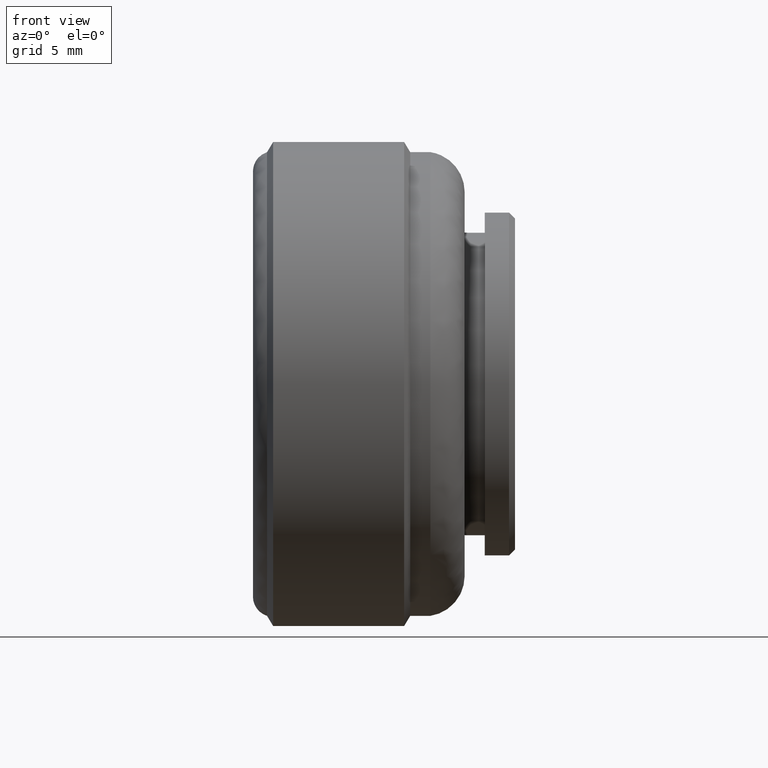
[diagram: clean part render]
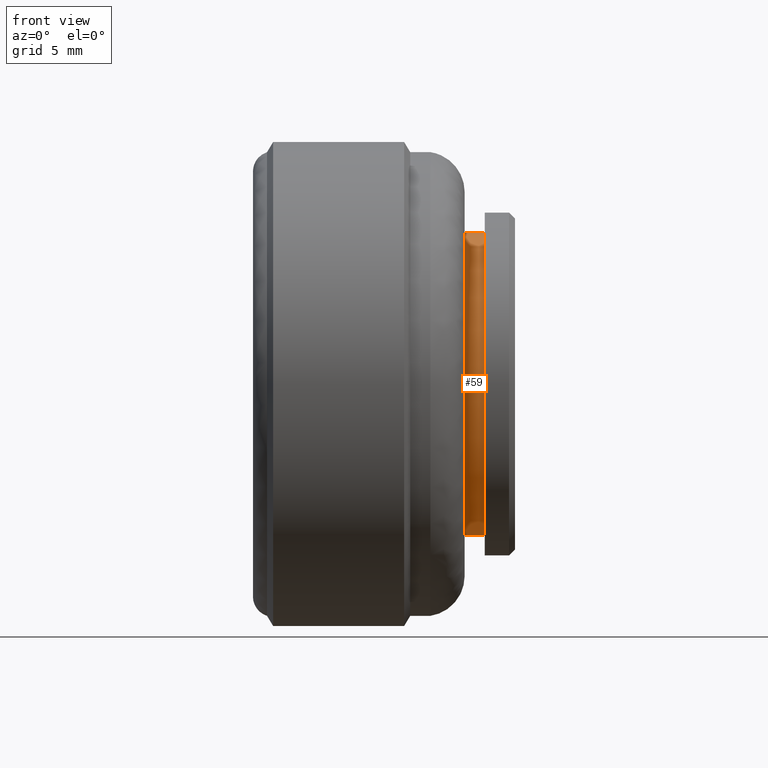
[diagram: same view with one face highlighted and labeled with its STEP entity id]
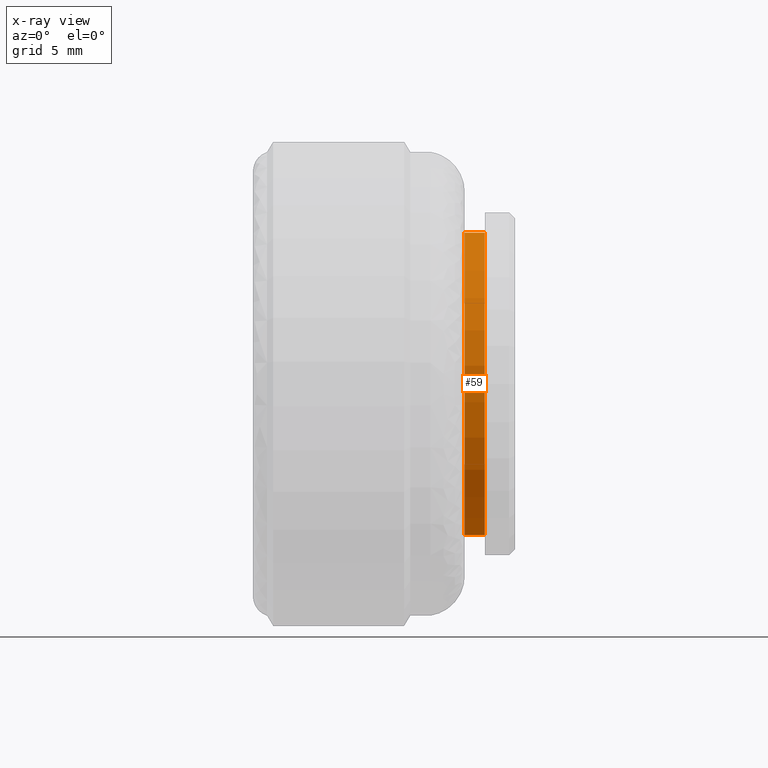
[diagram: x-ray of the same camera — body ghosted, the highlighted face saturated]
A machine part, front view. The second image highlights one B-rep face of the part: STEP entity #59.
The next image is the same camera in x-ray: the body ghosted, the highlighted face saturated — about 0% of this face is hidden behind the body in this view.
In plain terms, the highlighted cylindrical surface (partial cylindrical patch) has radius 7.5 mm, axis along (1, -0, -0).
Its self-contained STEP definition (entity closure, byte-faithful):
#59=ADVANCED_FACE('',(#266),#265,.T.);
#265=CYLINDRICAL_SURFACE('',#616,7.50000000000E+00);
#266=FACE_OUTER_BOUND('',#617,.T.);
#613=CARTESIAN_POINT('',(0.00000000000E+00,0.00000000000E+00,0.00000000000E+00));
#614=DIRECTION('',(1.00000000000E+00,-0.00000000000E+00,-0.00000000000E+00));
#615=DIRECTION('',(-0.00000000000E+00,-0.00000000000E+00,-1.00000000000E+00));
#616=AXIS2_PLACEMENT_3D('',#613,#614,#615);
#617=EDGE_LOOP('',(#786,#787,#788,#789));
#786=ORIENTED_EDGE('',*,*,#843,.F.);
#787=ORIENTED_EDGE('',*,*,#878,.T.);
#788=ORIENTED_EDGE('',*,*,#846,.T.);
#789=ORIENTED_EDGE('',*,*,#879,.F.);
#843=EDGE_CURVE('',#929,#928,#936,.T.);
#846=EDGE_CURVE('',#956,#957,#958,.T.);
#878=EDGE_CURVE('',#929,#956,#1167,.T.);
#879=EDGE_CURVE('',#928,#957,#1173,.T.);
#928=VERTEX_POINT('',#1327);
#929=VERTEX_POINT('',#1328);
#936=CIRCLE('',#1336,7.50000000000E+00);
#956=VERTEX_POINT('',#1347);
#957=VERTEX_POINT('',#1348);
#958=CIRCLE('',#1352,7.50000000000E+00);
#1167=(BOUNDED_CURVE() B_SPLINE_CURVE(1,(#1473,#1474),.UNSPECIFIED.,.F.,.F.) B_SPLINE_CURVE_WITH_KNOTS((2,2),(8.33332935974E-02,9.16666633252E-01),.UNSPECIFIED.) CURVE() GEOMETRIC_REPRESENTATION_ITEM() RATIONAL_B_SPLINE_CURVE((1.00000000000E+00,1.00000000000E+00)) REPRESENTATION_ITEM('') );
#1173=(BOUNDED_CURVE() B_SPLINE_CURVE(1,(#1475,#1476),.UNSPECIFIED.,.F.,.F.) B_SPLINE_CURVE_WITH_KNOTS((2,2),(8.33333333333E-02,9.16666666667E-01),.UNSPECIFIED.) CURVE() GEOMETRIC_REPRESENTATION_ITEM() RATIONAL_B_SPLINE_CURVE((7.50000000000E-01,7.50000000000E-01)) REPRESENTATION_ITEM('') );
#1327=CARTESIAN_POINT('',(-2.50000000000E+00,0.00000000000E+00,7.50000000000E+00));
#1328=CARTESIAN_POINT('',(-2.50000000000E+00,8.88178419700E-16,-7.50000000000E+00));
#1333=CARTESIAN_POINT('',(-2.50000000000E+00,0.00000000000E+00,0.00000000000E+00));
#1334=DIRECTION('',(-1.00000000000E+00,0.00000000000E+00,0.00000000000E+00));
#1335=DIRECTION('',(0.00000000000E+00,-1.22460635382E-16,1.00000000000E+00));
#1336=AXIS2_PLACEMENT_3D('',#1333,#1334,#1335);
#1347=CARTESIAN_POINT('',(-1.50000000000E+00,8.88178419700E-16,-7.50000000000E+00));
#1348=CARTESIAN_POINT('',(-1.50000000000E+00,0.00000000000E+00,7.50000000000E+00));
#1349=CARTESIAN_POINT('',(-1.50000000000E+00,0.00000000000E+00,0.00000000000E+00));
#1350=DIRECTION('',(-1.00000000000E+00,0.00000000000E+00,0.00000000000E+00));
#1351=DIRECTION('',(0.00000000000E+00,-1.22460635382E-16,1.00000000000E+00));
#1352=AXIS2_PLACEMENT_3D('',#1349,#1350,#1351);
#1473=CARTESIAN_POINT('',(-2.50000004768E+00,0.00000000000E+00,-7.50000000000E+00));
#1474=CARTESIAN_POINT('',(-1.50000004010E+00,0.00000000000E+00,-7.50000000000E+00));
#1475=CARTESIAN_POINT('',(-2.50000000000E+00,0.00000000000E+00,7.50000000000E+00));
#1476=CARTESIAN_POINT('',(-1.50000000000E+00,0.00000000000E+00,7.50000000000E+00));